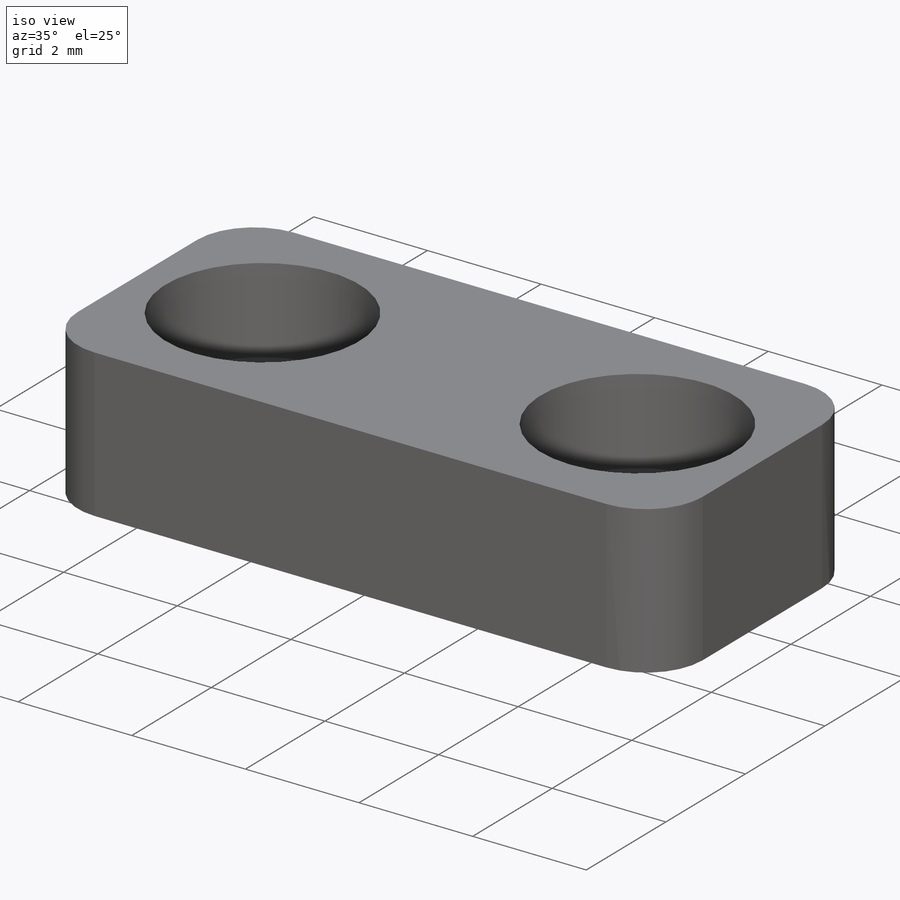
[diagram: iso view]
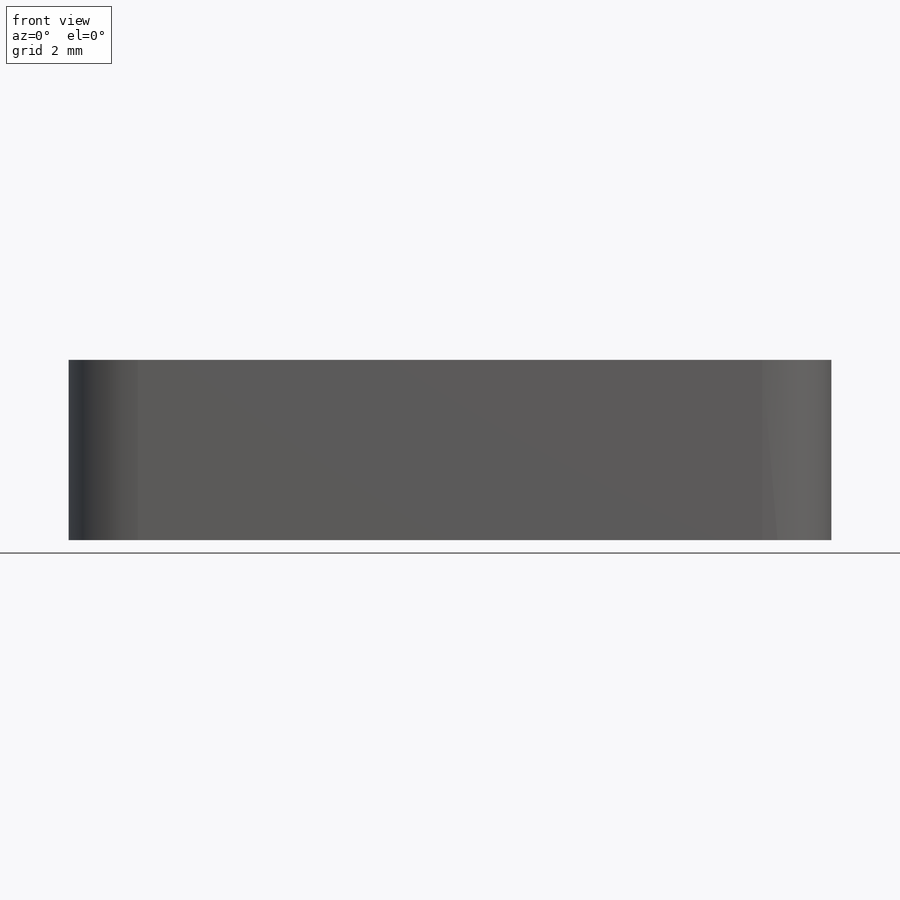
[diagram: front view]
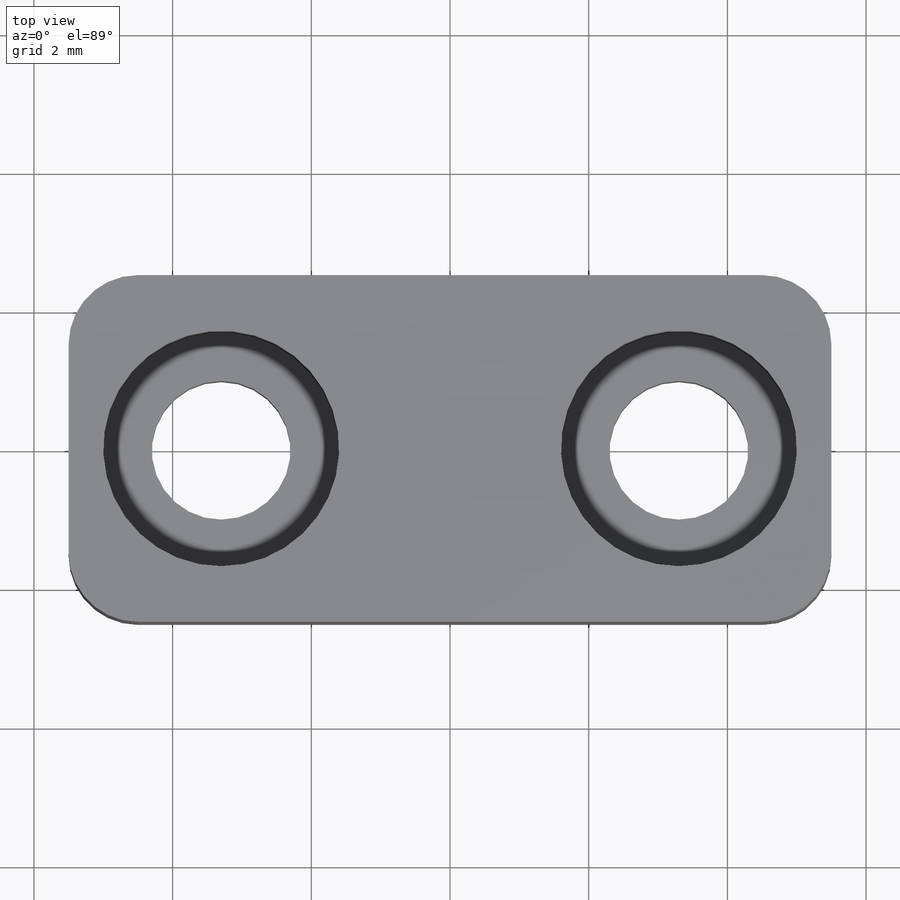
[diagram: top view]
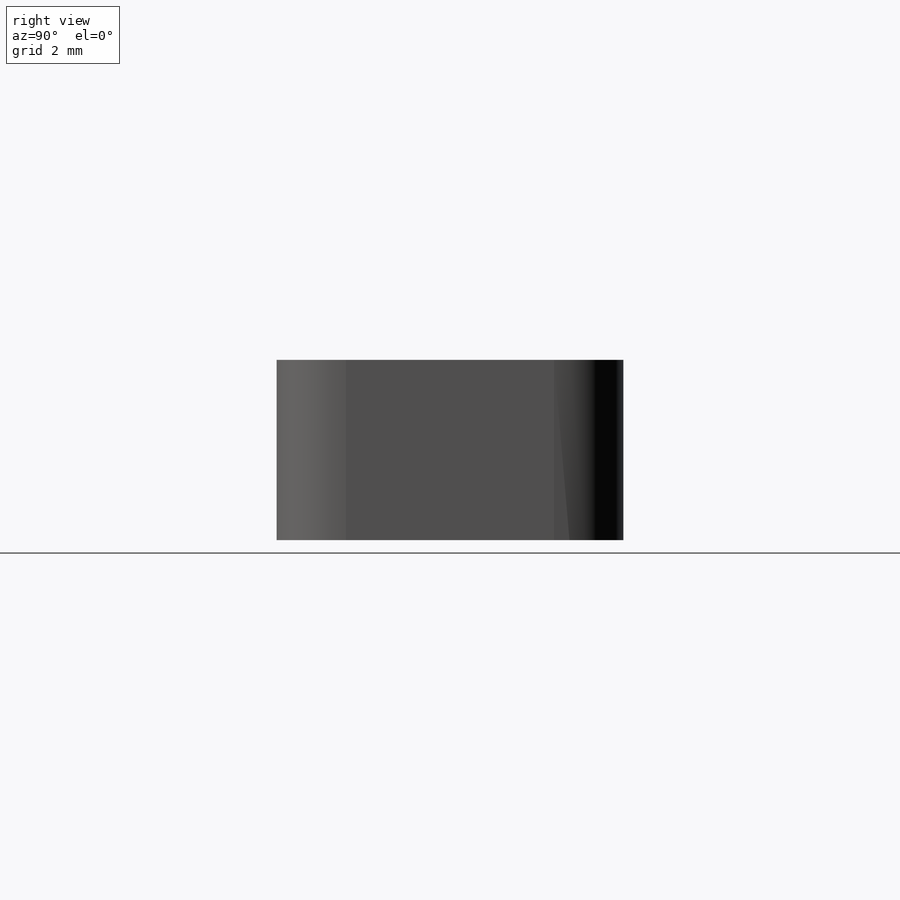
[diagram: right view]
SOLIDWORKS PART (.sldprt)
format: sldprt  version: not decoded by parser v0  size: 159,744 bytes
history: native  units: mm
features: sketch x2, material x1, extrude x1, cut_extrude x1, fillet x1 (+12 scaffold rows collapsed)
feature tree (18):
  scaffold x12  (default folders/planes/origin — collapsed)
  material  "Custom Plastic"
  sketch  "Sketch1"  dims[D5=2.0mm D6=2.0mm D1=11.0mm D2=5.0mm D3=2.2mm D4=2.2mm]
  extrude  "Boss-Extrude1"  Depth=2.6mm
  sketch  "Sketch2"  dims[D1=3.4mm D2=3.4mm]
  cut_extrude  "Cut-Extrude1"  Depth=1.5mm
  fillet  "Fillet1"  Radius=1mm
decode coverage: 5 of 5 modeling features carry decoded parameters
note: suppression state not decoded; provenance and decode notes live in map.json
